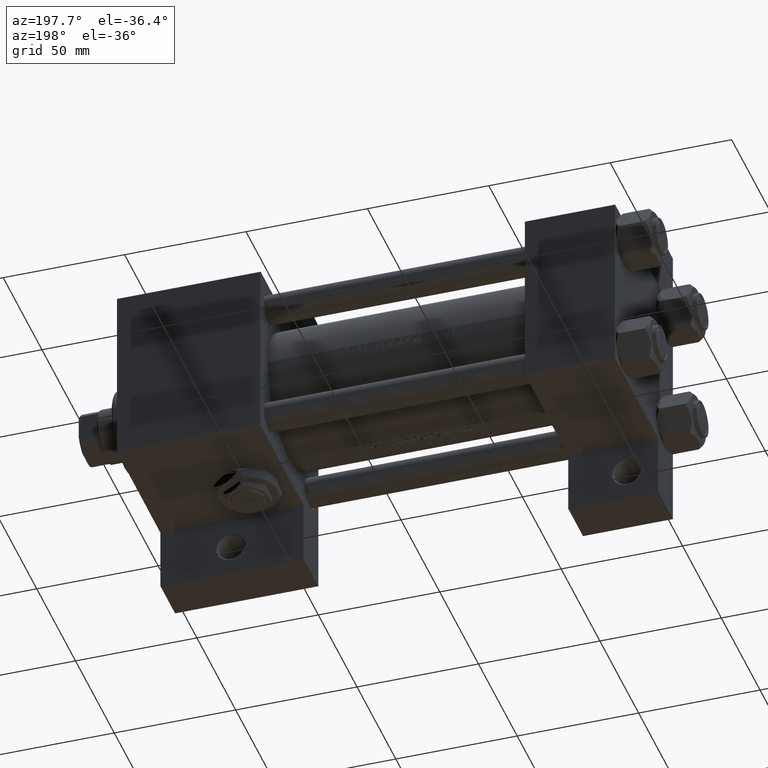
[diagram: clean part render]
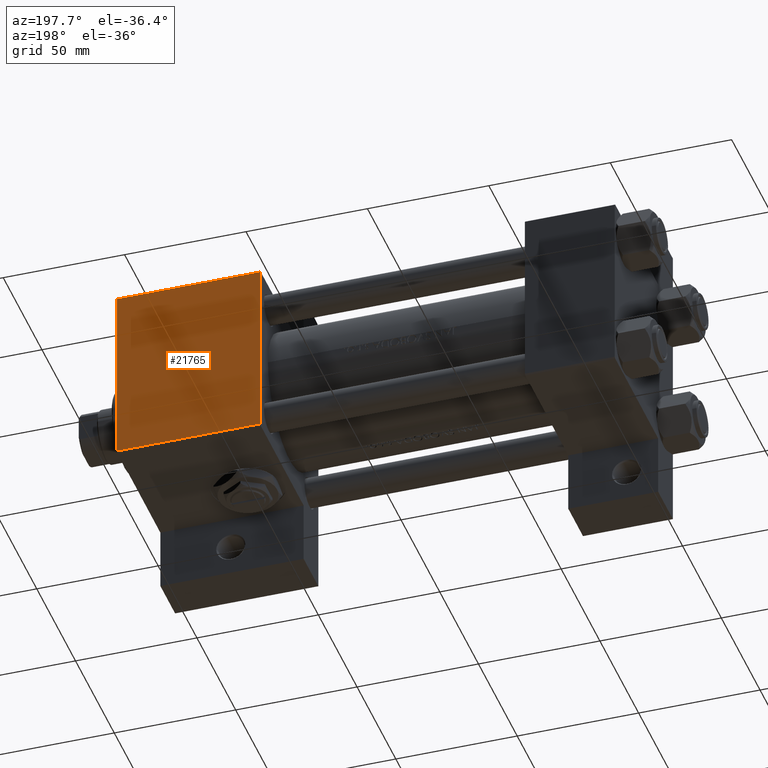
[diagram: same view with one face highlighted and labeled with its STEP entity id]
A machine part, auxiliary view. The second image highlights one B-rep face of the part: STEP entity #21765.
In plain terms, the highlighted planar face has unit normal (0, -1, -0).
Its self-contained STEP definition (entity closure, byte-faithful):
#812 = VERTEX_POINT ( 'NONE', #27147 ) ;
#2418 = VECTOR ( 'NONE', #38550, 1000.000000000000000 ) ;
#2758 = EDGE_CURVE ( 'NONE', #3527, #33145, #6494, .T. ) ;
#3116 = ORIENTED_EDGE ( 'NONE', *, *, #2758, .T. ) ;
#3527 = VERTEX_POINT ( 'NONE', #18370 ) ;
#3897 = VECTOR ( 'NONE', #21716, 1000.000000000000000 ) ;
#5397 = LINE ( 'NONE', #5649, #18765 ) ;
#5649 = CARTESIAN_POINT ( 'NONE',  ( 146.0000000000000000, 37.50000000000000000, 37.49999999999999289 ) ) ;
#6475 = ORIENTED_EDGE ( 'NONE', *, *, #44795, .T. ) ;
#6494 = LINE ( 'NONE', #41107, #3897 ) ;
#8881 = AXIS2_PLACEMENT_3D ( 'NONE', #36723, #28772, #17822 ) ;
#10586 = FACE_OUTER_BOUND ( 'NONE', #36274, .T. ) ;
#13991 = DIRECTION ( 'NONE',  ( -1.000000000000000000, 0.000000000000000000, 0.000000000000000000 ) ) ;
#17134 = VERTEX_POINT ( 'NONE', #24177 ) ;
#17822 = DIRECTION ( 'NONE',  ( 0.000000000000000000, 1.000000000000000000, 1.850371707708594316E-16 ) ) ;
#18370 = CARTESIAN_POINT ( 'NONE',  ( 146.0000000000000000, -37.00000000000000000, 37.49999999999997868 ) ) ;
#18765 = VECTOR ( 'NONE', #42780, 1000.000000000000000 ) ;
#20463 = EDGE_CURVE ( 'NONE', #812, #33145, #26615, .T. ) ;
#20808 = ORIENTED_EDGE ( 'NONE', *, *, #20463, .F. ) ;
#21716 = DIRECTION ( 'NONE',  ( 1.000000000000000000, 0.000000000000000000, 0.000000000000000000 ) ) ;
#21765 = ADVANCED_FACE ( 'NONE', ( #10586 ), #40958, .F. ) ;
#21967 = LINE ( 'NONE', #44125, #47383 ) ;
#24177 = CARTESIAN_POINT ( 'NONE',  ( 146.0000000000000000, 37.00000000000002842, 37.49999999999999289 ) ) ;
#26615 = LINE ( 'NONE', #31089, #2418 ) ;
#27147 = CARTESIAN_POINT ( 'NONE',  ( 205.0000000000000000, 37.00000000000002842, 37.49999999999999289 ) ) ;
#28772 = DIRECTION ( 'NONE',  ( 0.000000000000000000, 1.850371707708594316E-16, -1.000000000000000000 ) ) ;
#31089 = CARTESIAN_POINT ( 'NONE',  ( 205.0000000000000000, 37.50000000000000000, 37.49999999999999289 ) ) ;
#31981 = EDGE_CURVE ( 'NONE', #17134, #3527, #5397, .T. ) ;
#33145 = VERTEX_POINT ( 'NONE', #47997 ) ;
#36274 = EDGE_LOOP ( 'NONE', ( #20808, #6475, #47926, #3116 ) ) ;
#36723 = CARTESIAN_POINT ( 'NONE',  ( 205.0000000000000000, 37.50000000000000000, 37.49999999999999289 ) ) ;
#38550 = DIRECTION ( 'NONE',  ( 0.000000000000000000, -1.000000000000000000, -1.850371707708594316E-16 ) ) ;
#40958 = PLANE ( 'NONE',  #8881 ) ;
#41107 = CARTESIAN_POINT ( 'NONE',  ( 205.0000000000000000, -37.00000000000000000, 37.49999999999997868 ) ) ;
#42780 = DIRECTION ( 'NONE',  ( 0.000000000000000000, -1.000000000000000000, -1.850371707708594316E-16 ) ) ;
#44125 = CARTESIAN_POINT ( 'NONE',  ( 146.0000000000000000, 37.00000000000002842, 37.49999999999999289 ) ) ;
#44795 = EDGE_CURVE ( 'NONE', #812, #17134, #21967, .T. ) ;
#47383 = VECTOR ( 'NONE', #13991, 1000.000000000000000 ) ;
#47926 = ORIENTED_EDGE ( 'NONE', *, *, #31981, .T. ) ;
#47997 = CARTESIAN_POINT ( 'NONE',  ( 205.0000000000000000, -37.00000000000000000, 37.49999999999997868 ) ) ;